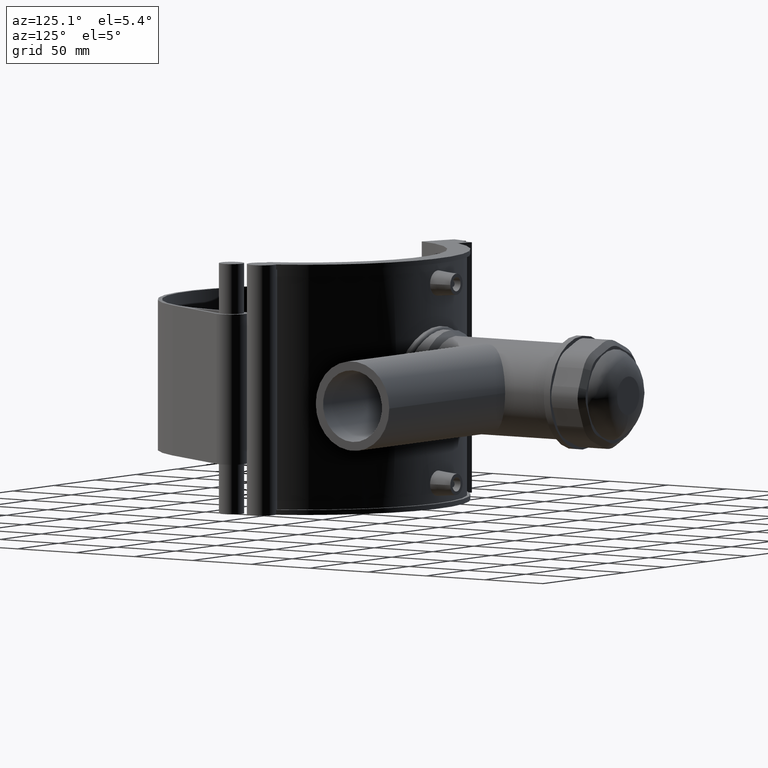
[diagram: clean part render]
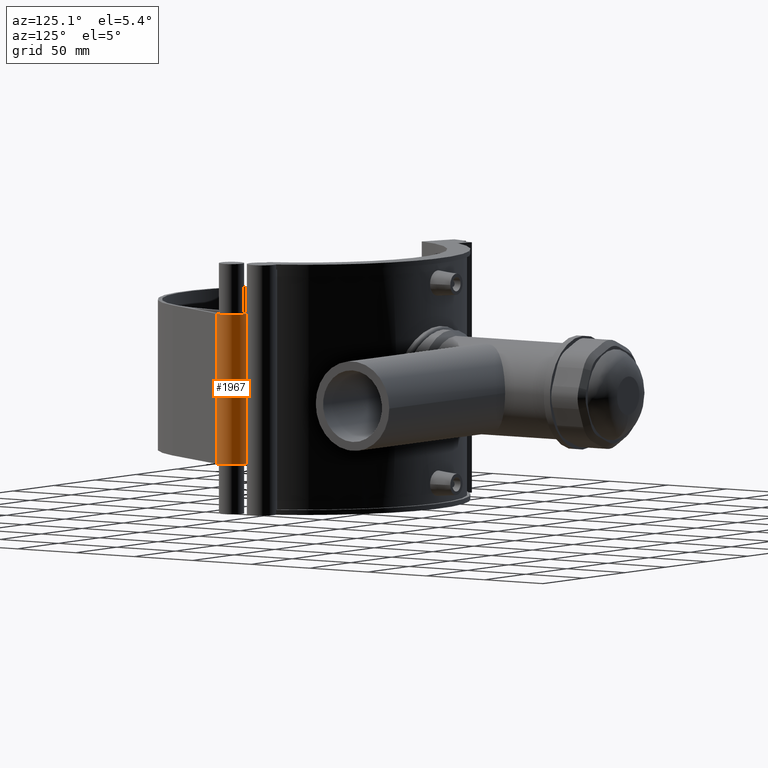
[diagram: same view with one face highlighted and labeled with its STEP entity id]
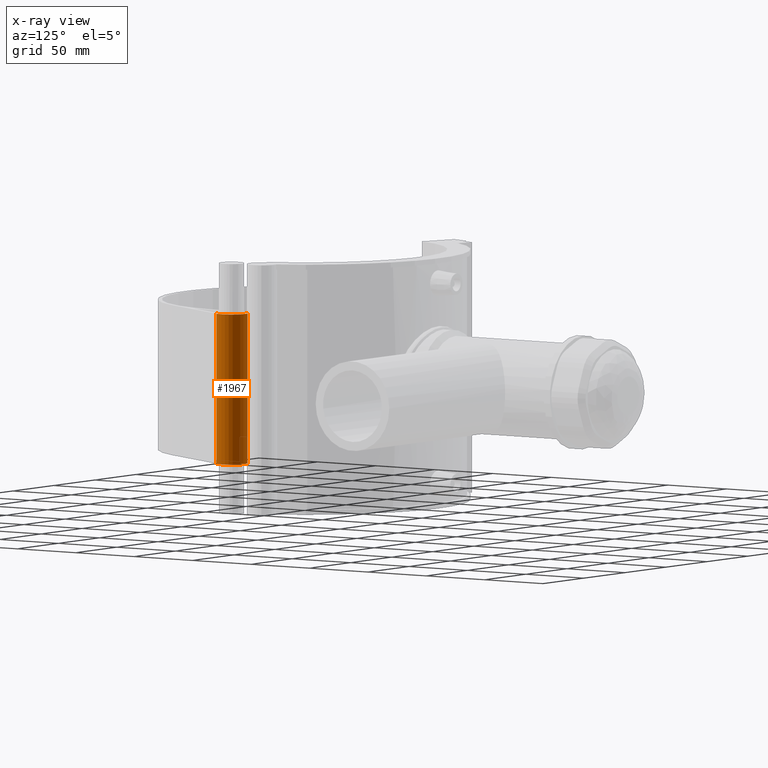
[diagram: x-ray of the same camera — body ghosted, the highlighted face saturated]
A machine part, auxiliary view. The second image highlights one B-rep face of the part: STEP entity #1967.
The next image is the same camera in x-ray: the body ghosted, the highlighted face saturated — about 0% of this face is hidden behind the body in this view.
In plain terms, the highlighted cylindrical surface (edge-blend (fillet) strip) has radius 11.8462 mm, axis along (0, 0, 1).
Its self-contained STEP definition (entity closure, byte-faithful):
#188=LINE('',#3610,#349);
#189=LINE('',#3612,#350);
#349=VECTOR('',#2683,105.6);
#350=VECTOR('',#2686,105.6);
#439=CYLINDRICAL_SURFACE('',#2163,11.8461538461538);
#546=FACE_OUTER_BOUND('',#688,.T.);
#688=EDGE_LOOP('',(#1715,#1716,#1717,#1718));
#768=CIRCLE('',#2081,11.8461538461538);
#778=CIRCLE('',#2092,11.8461538461538);
#889=VERTEX_POINT('',#3343);
#890=VERTEX_POINT('',#3345);
#908=VERTEX_POINT('',#3383);
#909=VERTEX_POINT('',#3385);
#1103=EDGE_CURVE('',#889,#890,#768,.T.);
#1123=EDGE_CURVE('',#908,#909,#778,.T.);
#1230=EDGE_CURVE('',#889,#909,#188,.T.);
#1231=EDGE_CURVE('',#890,#908,#189,.T.);
#1715=ORIENTED_EDGE('',*,*,#1230,.T.);
#1716=ORIENTED_EDGE('',*,*,#1123,.F.);
#1717=ORIENTED_EDGE('',*,*,#1231,.F.);
#1718=ORIENTED_EDGE('',*,*,#1103,.F.);
#1967=ADVANCED_FACE('',(#546),#439,.T.);
#2081=AXIS2_PLACEMENT_3D('',#3346,#2443,#2444);
#2092=AXIS2_PLACEMENT_3D('',#3386,#2475,#2476);
#2163=AXIS2_PLACEMENT_3D('',#3622,#2700,#2701);
#2443=DIRECTION('center_axis',(0.,0.,-1.));
#2444=DIRECTION('ref_axis',(0.333937766224137,-0.942595124265574,0.));
#2475=DIRECTION('center_axis',(0.,0.,1.));
#2476=DIRECTION('ref_axis',(0.333937766224137,-0.942595124265574,0.));
#2683=DIRECTION('',(0.,0.,1.));
#2686=DIRECTION('',(0.,0.,1.));
#2700=DIRECTION('center_axis',(0.,0.,1.));
#2701=DIRECTION('ref_axis',(0.333937766224137,-0.942595124265574,0.));
#3343=CARTESIAN_POINT('',(110.177502823399,28.6627455084343,-52.8));
#3345=CARTESIAN_POINT('',(123.915970360143,11.5951573650167,-52.8));
#3346=CARTESIAN_POINT('Origin',(113.535301282584,17.3024395946731,-52.8));
#3383=CARTESIAN_POINT('',(123.915970360143,11.5951573650167,52.8));
#3385=CARTESIAN_POINT('',(110.177502823399,28.6627455084343,52.8));
#3386=CARTESIAN_POINT('Origin',(113.535301282584,17.3024395946731,52.8));
#3610=CARTESIAN_POINT('',(110.177502823399,28.6627455084343,0.));
#3612=CARTESIAN_POINT('',(123.915970360143,11.5951573650167,0.));
#3622=CARTESIAN_POINT('Origin',(113.535301282584,17.3024395946731,0.));